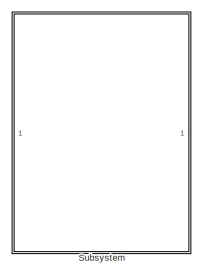
[diagram: root canvas - part 1/3, top left region]
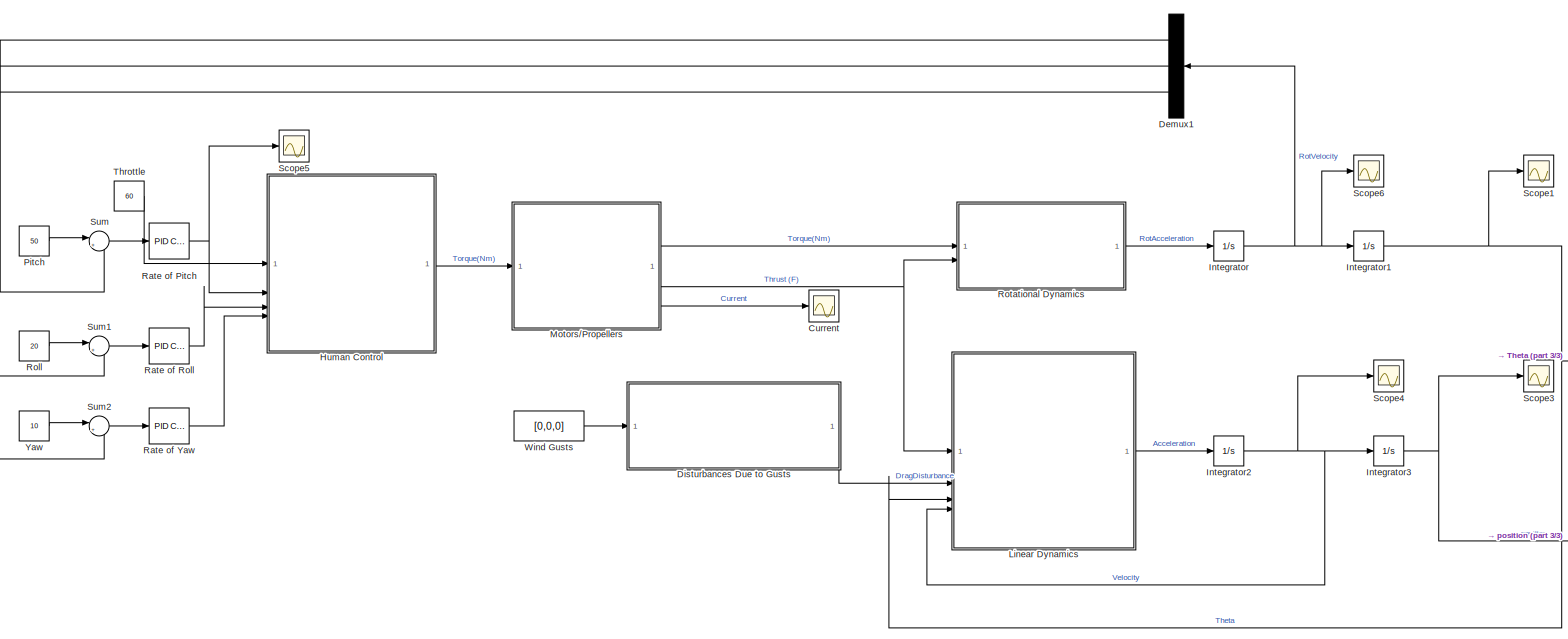
[diagram: root canvas - part 2/3, full width, bottom band]
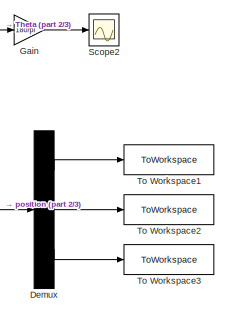
[diagram: root canvas - part 3/3, bottom right region]
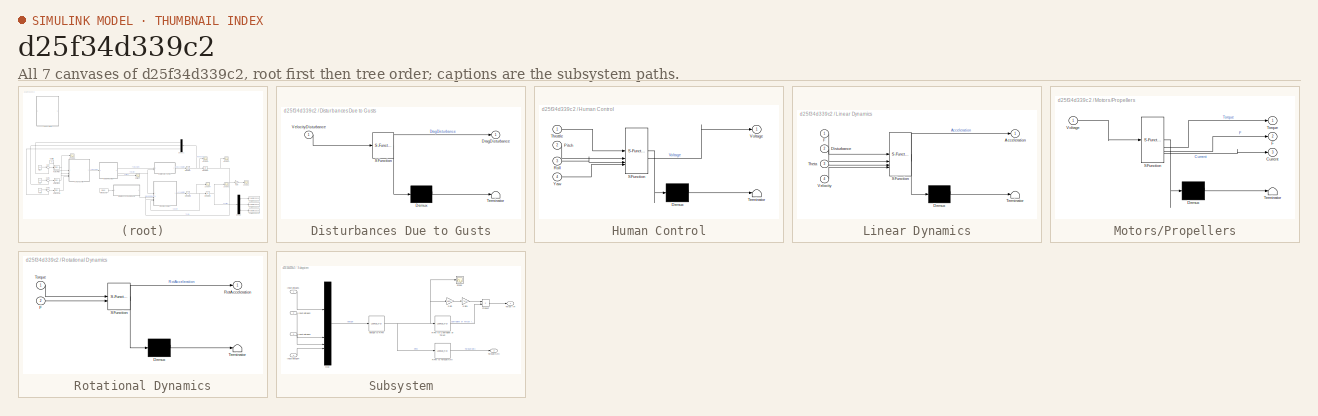
[diagram: thumbnail index - all 7 canvases of the model, root first then tree order]
MODEL slx_d25f34d339c2
KIND model
CONFIG AbsTol = auto
CONFIG EnableMultiTasking = off
CONFIG FixedStep = auto
CONFIG MaxStep = auto
CONFIG MinStep = auto
CONFIG RelTol = 1e-3
CONFIG SampleTimeConstraint = Unconstrained
CONFIG SolverName = VariableStepAuto
CONFIG StartTime = 0.0
CONFIG StopTime = 100
BLOCK [Scope] Current
  Floating = off
  NumInputPorts = 1
  ScopeSpecificationString = Simulink.scopes.TimeScopeBlockCfg('CurrentConfiguration', extmgr.ConfigurationSet(extmgr.Configuration('Core','General UI',true),extmgr.Configuration('Core','Source UI',true),extmgr.Configuration('Sources','WiredSimulink',true),extmgr.Configuration('Visuals','Time Domain',true,'SerializedDisplays',{struct('MinYLimReal','-33.19624','MaxYLimReal','178.28176','YLabelReal','','MinYLimMag','0.00000','M...<+1468ch>
BLOCK [Demux] Demux
  Outputs = 3
BLOCK [Demux] Demux1
  Outputs = 3
BLOCK [SubSystem] Disturbances Due to Gusts
  ErrorFcn = Stateflow.Translate.translate
  LibrarySourceBlock = simulink/User-Defined\nFunctions/MATLAB Function
  PermitHierarchicalResolution = ExplicitOnly
  SFBlockType = MATLAB Function
  TreatAsAtomicUnit = on
BLOCK [Demux] Disturbances Due to Gusts/ Demux 
  Outputs = 1
BLOCK [S-Function] Disturbances Due to Gusts/ SFunction 
  EnableBusSupport = on
  FunctionName = sf_sfun
  PortCounts = [1 2]
  SFcnIsStateOwnerBlock = off
  SFunctionDeploymentMode = off
  Tag = Stateflow S-Function 5
BLOCK [Terminator] Disturbances Due to Gusts/ Terminator 
BLOCK [Outport] Disturbances Due to Gusts/DragDisturbance
BLOCK [Inport] Disturbances Due to Gusts/VelocityDisturbance
BLOCK [Gain] Gain
  Gain = 180/pi
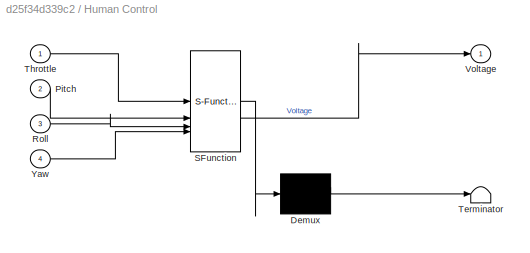
BLOCK [SubSystem] Human Control
  ErrorFcn = Stateflow.Translate.translate
  LibrarySourceBlock = simulink/User-Defined\nFunctions/MATLAB Function
  PermitHierarchicalResolution = ExplicitOnly
  SFBlockType = MATLAB Function
  TreatAsAtomicUnit = on
BLOCK [Demux] Human Control/ Demux 
  Outputs = 1
BLOCK [S-Function] Human Control/ SFunction 
  EnableBusSupport = on
  FunctionName = sf_sfun
  PortCounts = [4 2]
  SFcnIsStateOwnerBlock = off
  SFunctionDeploymentMode = off
  Tag = Stateflow S-Function 4
BLOCK [Terminator] Human Control/ Terminator 
BLOCK [Inport] Human Control/Pitch
  Port = 2
BLOCK [Inport] Human Control/Roll
  Port = 3
BLOCK [Inport] Human Control/Throttle
BLOCK [Outport] Human Control/Voltage
BLOCK [Inport] Human Control/Yaw
  Port = 4
BLOCK [Integrator] Integrator
BLOCK [Integrator] Integrator1
BLOCK [Integrator] Integrator2
BLOCK [Integrator] Integrator3
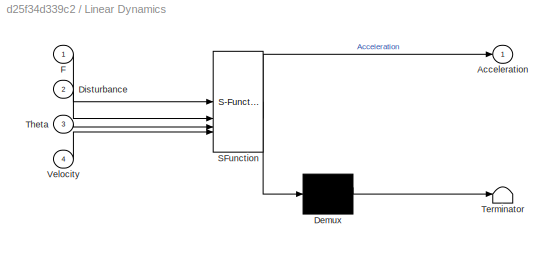
BLOCK [SubSystem] Linear Dynamics
  ErrorFcn = Stateflow.Translate.translate
  LibrarySourceBlock = simulink/User-Defined\nFunctions/MATLAB Function
  PermitHierarchicalResolution = ExplicitOnly
  SFBlockType = MATLAB Function
  TreatAsAtomicUnit = on
BLOCK [Demux] Linear Dynamics/ Demux 
  Outputs = 1
BLOCK [S-Function] Linear Dynamics/ SFunction 
  EnableBusSupport = on
  FunctionName = sf_sfun
  PortCounts = [4 2]
  SFcnIsStateOwnerBlock = off
  SFunctionDeploymentMode = off
  Tag = Stateflow S-Function 3
BLOCK [Terminator] Linear Dynamics/ Terminator 
BLOCK [Outport] Linear Dynamics/Acceleration
BLOCK [Inport] Linear Dynamics/Disturbance
  Port = 2
BLOCK [Inport] Linear Dynamics/F
BLOCK [Inport] Linear Dynamics/Theta
  Port = 3
BLOCK [Inport] Linear Dynamics/Velocity
  Port = 4
BLOCK [SubSystem] Motors//Propellers
  ErrorFcn = Stateflow.Translate.translate
  LibrarySourceBlock = simulink/User-Defined\nFunctions/MATLAB Function
  PermitHierarchicalResolution = ExplicitOnly
  SFBlockType = MATLAB Function
  TreatAsAtomicUnit = on
BLOCK [Demux] Motors//Propellers/ Demux 
  Outputs = 1
BLOCK [S-Function] Motors//Propellers/ SFunction 
  EnableBusSupport = on
  FunctionName = sf_sfun
  PortCounts = [1 4]
  SFcnIsStateOwnerBlock = off
  SFunctionDeploymentMode = off
  Tag = Stateflow S-Function 2
BLOCK [Terminator] Motors//Propellers/ Terminator 
BLOCK [Outport] Motors//Propellers/Current
  Port = 3
BLOCK [Outport] Motors//Propellers/F
  Port = 2
BLOCK [Outport] Motors//Propellers/Torque
BLOCK [Inport] Motors//Propellers/Voltage
BLOCK [Constant] Pitch
  Value = 50
BLOCK [Reference] Rate of Pitch  REF=slpidlib/PID Controller
  LibrarySourceBlock = simulink/Continuous/PID Controller
  SourceBlock = slpidlib/PID Controller
  SourceType = PID 1dof
BLOCK [Reference] Rate of Roll  REF=slpidlib/PID Controller
  LibrarySourceBlock = simulink/Continuous/PID Controller
  SourceBlock = slpidlib/PID Controller
  SourceType = PID 1dof
BLOCK [Reference] Rate of Yaw  REF=slpidlib/PID Controller
  LibrarySourceBlock = simulink/Continuous/PID Controller
  SourceBlock = slpidlib/PID Controller
  SourceType = PID 1dof
BLOCK [Constant] Roll
  Value = 20
BLOCK [SubSystem] Rotational Dynamics
  ErrorFcn = Stateflow.Translate.translate
  LibrarySourceBlock = simulink/User-Defined\nFunctions/MATLAB Function
  PermitHierarchicalResolution = ExplicitOnly
  SFBlockType = MATLAB Function
  TreatAsAtomicUnit = on
BLOCK [Demux] Rotational Dynamics/ Demux 
  Outputs = 1
BLOCK [S-Function] Rotational Dynamics/ SFunction 
  EnableBusSupport = on
  FunctionName = sf_sfun
  PortCounts = [2 2]
  SFcnIsStateOwnerBlock = off
  SFunctionDeploymentMode = off
  Tag = Stateflow S-Function 1
BLOCK [Terminator] Rotational Dynamics/ Terminator 
BLOCK [Inport] Rotational Dynamics/F
  Port = 2
BLOCK [Outport] Rotational Dynamics/RotAcceleration
BLOCK [Inport] Rotational Dynamics/Torque
BLOCK [Scope] Scope1
  Floating = off
  NumInputPorts = 1
  ScopeSpecificationString = Simulink.scopes.TimeScopeBlockCfg('CurrentConfiguration', extmgr.ConfigurationSet(extmgr.Configuration('Core','General UI',true),extmgr.Configuration('Core','Source UI',true),extmgr.Configuration('Sources','WiredSimulink',true,'DataLoggingVariableName','ScopeData2'),extmgr.Configuration('Visuals','Time Domain',true,'SerializedDisplays',{struct('MinYLimReal','-624.52833','MaxYLimReal','5620.75499',...<+1429ch>
BLOCK [Scope] Scope2
  Floating = off
  NumInputPorts = 1
  ScopeSpecificationString = Simulink.scopes.TimeScopeBlockCfg('CurrentConfiguration', extmgr.ConfigurationSet(extmgr.Configuration('Core','General UI',true),extmgr.Configuration('Core','Source UI',true),extmgr.Configuration('Sources','WiredSimulink',true,'DataLoggingVariableName','ScopeData3'),extmgr.Configuration('Visuals','Time Domain',true,'SerializedDisplays',{struct('MinYLimReal','-35757.85621','MaxYLimReal','321820.705...<+1563ch>
BLOCK [Scope] Scope3
  Floating = off
  NumInputPorts = 1
  ScopeSpecificationString = Simulink.scopes.TimeScopeBlockCfg('CurrentConfiguration', extmgr.ConfigurationSet(extmgr.Configuration('Core','General UI',true),extmgr.Configuration('Core','Source UI',true),extmgr.Configuration('Sources','WiredSimulink',true,'DataLoggingVariableName','ScopeData4'),extmgr.Configuration('Visuals','Time Domain',true,'SerializedDisplays',{struct('MinYLimReal','-6.25009','MaxYLimReal','56.25083','YLa...<+1564ch>
BLOCK [Scope] Scope4
  Floating = off
  NumInputPorts = 1
  ScopeSpecificationString = Simulink.scopes.TimeScopeBlockCfg('CurrentConfiguration', extmgr.ConfigurationSet(extmgr.Configuration('Core','General UI',true),extmgr.Configuration('Core','Source UI',true),extmgr.Configuration('Sources','WiredSimulink',true,'DataLoggingVariableName','ScopeData1'),extmgr.Configuration('Visuals','Time Domain',true,'SerializedDisplays',{struct('MinYLimReal','-18.0523','MaxYLimReal','4.59999','YLab...<+1541ch>
BLOCK [Scope] Scope5
  Floating = off
  NumInputPorts = 1
  ScopeSpecificationString = Simulink.scopes.TimeScopeBlockCfg('CurrentConfiguration', extmgr.ConfigurationSet(extmgr.Configuration('Core','General UI',true),extmgr.Configuration('Core','Source UI',true),extmgr.Configuration('Sources','WiredSimulink',true,'DataLoggingVariableName','ScopeData2'),extmgr.Configuration('Visuals','Time Domain',true,'SerializedDisplays',{struct('MinYLimReal','20.51602','MaxYLimReal','108.83155','YL...<+1483ch>
BLOCK [Scope] Scope6
  Floating = off
  NumInputPorts = 1
  ScopeSpecificationString = Simulink.scopes.TimeScopeBlockCfg('CurrentConfiguration', extmgr.ConfigurationSet(extmgr.Configuration('Core','General UI',true),extmgr.Configuration('Core','Source UI',true),extmgr.Configuration('Sources','WiredSimulink',true,'DataLoggingVariableName','ScopeData3'),extmgr.Configuration('Visuals','Time Domain',true,'SerializedDisplays',{struct('MinYLimReal','-6.31451','MaxYLimReal','56.28878','YLa...<+1507ch>
BLOCK [SubSystem] Subsystem
  Commented = on
BLOCK [Lookup_n-D] Subsystem/ RPM to Torque(Nm)
  BreakpointsForDimension1 = [1000\n2000\n3000\n4000\n5000\n6000\n7000\n8000\n9000\n10000\n11000\n12000\n13000\n13999\n15000\n16000\n17000\n18000\n19000\n20000\n21000\n22000\n23000\n24000\n25000\n26000\n26999\n29000\n30000]
  InputPortMap = u0
  InternalRulePriority = Speed
  NumberOfTableDimensions = 1
  RndMeth = Simplest
  Table = [0.000790893803\n0.003050590383\n0.00677908974\n0.01220236153\n0.0190944361\n0.02745531345\n0.03751096323\n0.04926138544\n0.06157673181\n0.07524789611\n0.09027487837\n0.1067706634\n0.1246222664\n0.1485750501\n0.1842782561\n0.2258566732\n0.2743271648\n0.3309325641\n0.3974806284\n0.4765700087\n0.5719292044\n0.6912411838\n0.868853335\n1.456374446\n1.887185599\n1.880745464\n2.452787653\n2.724629151\n2.137108041]
BLOCK [Gain] Subsystem/Gain
  Gain = (1/60)^2
BLOCK [Gain] Subsystem/Gain1
  Gain = 0.2^4*1.225
BLOCK [Inport] Subsystem/InputVoltage1
BLOCK [Inport] Subsystem/InputVoltage2
  Port = 2
BLOCK [Inport] Subsystem/InputVoltage3
  Port = 3
BLOCK [Inport] Subsystem/InputVoltage4
  Port = 4
BLOCK [Mux] Subsystem/Mux
  DisplayOption = bar
BLOCK [Product] Subsystem/Product
BLOCK [Lookup_n-D] Subsystem/RPM to Coefficient of Thrust
  BreakpointsForDimension1 = [1000\n2000\n3000\n4000\n5000\n6000\n7000\n8000\n9000\n10000\n11000\n12000\n13000\n13999\n15000\n16000\n17000\n18000\n19000\n20000\n21000\n22000\n23000\n24000\n25000\n26000\n26999\n29000\n30000]
  InputPortMap = u0
  InternalRulePriority = Speed
  NumberOfTableDimensions = 1
  RndMeth = Simplest
  Table = [0.1017\n0.1018\n0.1018\n0.102\n0.1021\n0.1023\n0.1025\n0.1027\n0.1028\n0.103\n0.1033\n0.1037\n0.1041\n0.1047\n0.1056\n0.1065\n0.1074\n0.1084\n0.1094\n0.1104\n0.1115\n0.1128\n0.1147\n0.1177\n0.1194\n0.1188\n0.12\n0.1167\n0.1113]
BLOCK [Scope] Subsystem/Scope
  Floating = off
  NumInputPorts = 1
  ScopeSpecificationString = Simulink.scopes.TimeScopeBlockCfg('CurrentConfiguration', extmgr.ConfigurationSet(extmgr.Configuration('Core','General UI',true),extmgr.Configuration('Core','Source UI',true),extmgr.Configuration('Sources','WiredSimulink',true,'DataLoggingVariableName','ScopeData1'),extmgr.Configuration('Visuals','Time Domain',true,'SerializedDisplays',{struct('MinYLimReal','6081.18656','MaxYLimReal','11880.27094'...<+1557ch>
BLOCK [Outport] Subsystem/Thrust (F)
BLOCK [Outport] Subsystem/Torque(Nm)
  Port = 2
BLOCK [Lookup_n-D] Subsystem/Voltage to RPM
  BreakpointsForDimension1 = [0	0.570000000000000	1.14000000000000	1.71000000000000	2.28000000000000	2.85000000000000	3.42000000000000	3.99000000000000	4.56000000000000	5.13000000000000	5.70000000000000	6.27000000000000	6.84000000000000	7.41000000000000	7.98000000000000	8.55000000000000	9.12000000000000	9.69000000000000	10.2600000000000	10.8300000000000	11.4000000000000]
  InputPortMap = u0
  InternalRulePriority = Speed
  NumberOfTableDimensions = 1
  RndMeth = Simplest
  Table = [0	797.501250000000	1592.01000000000	2380.53375000000	3160.08000000000	3927.65625000000	4680.27000000000	5414.92875000000	6128.64000000000	6818.41125000000	7481.25000000000	8114.16375000000	8714.16000000000	9278.24625000000	9803.43000000000	10286.7187500000	10725.1200000000	11115.6412500000	11455.2900000000	11741.0737500000	11970]
BLOCK [Sum] Sum
  Inputs = |+-
BLOCK [Sum] Sum1
  Inputs = |+-
BLOCK [Sum] Sum2
  Inputs = |+-
BLOCK [Constant] Throttle
  Value = 60
BLOCK [ToWorkspace] To Workspace1
  FixptAsFi = on
  MaxDataPoints = inf
  SampleTime = -1
  Save2DSignal = 2-D array (concatenate along first dimension)
  VariableName = X
BLOCK [ToWorkspace] To Workspace2
  FixptAsFi = on
  MaxDataPoints = inf
  SampleTime = -1
  Save2DSignal = 2-D array (concatenate along first dimension)
  VariableName = Y
BLOCK [ToWorkspace] To Workspace3
  FixptAsFi = on
  MaxDataPoints = inf
  SampleTime = -1
  Save2DSignal = 2-D array (concatenate along first dimension)
  VariableName = Z
BLOCK [Constant] Wind Gusts
  Value = [0,0,0]
BLOCK [Constant] Yaw
  Value = 10
LINE Demux1:1 -> Sum:2
LINE Demux1:2 -> Sum1:2
LINE Demux1:3 -> Sum2:2
LINE Demux:1 -> To Workspace1:1
LINE Demux:2 -> To Workspace2:1
LINE Demux:3 -> To Workspace3:1
LINE Disturbances Due to Gusts:1 -> Linear Dynamics:2
LINE Gain:1 -> Scope2:1
LINE Human Control:1 -> Motors//Propellers:1
NET Integrator1:1 -> Gain:1, Linear Dynamics:3, Scope1:1
NET Integrator2:1 -> Integrator3:1, Linear Dynamics:4, Scope4:1
NET Integrator3:1 -> Demux:1, Scope3:1
NET Integrator:1 -> Demux1:1, Integrator1:1, Scope6:1
LINE Linear Dynamics:1 -> Integrator2:1
LINE Motors//Propellers:1 -> Rotational Dynamics:1
NET Motors//Propellers:2 -> Linear Dynamics:1, Rotational Dynamics:2
LINE Motors//Propellers:3 -> Current:1
LINE Pitch:1 -> Sum:1
NET Rate of Pitch:1 -> Human Control:2, Scope5:1
LINE Rate of Roll:1 -> Human Control:3
LINE Rate of Yaw:1 -> Human Control:4
LINE Roll:1 -> Sum1:1
LINE Rotational Dynamics:1 -> Integrator:1
LINE Subsystem/ RPM to Torque(Nm):1 -> Subsystem/Torque(Nm):1
LINE Subsystem/Gain1:1 -> Subsystem/Product:1
LINE Subsystem/Gain:1 -> Subsystem/Gain1:1
LINE Subsystem/InputVoltage1:1 -> Subsystem/Mux:1
LINE Subsystem/InputVoltage2:1 -> Subsystem/Mux:2
LINE Subsystem/InputVoltage3:1 -> Subsystem/Mux:3
LINE Subsystem/InputVoltage4:1 -> Subsystem/Mux:4
LINE Subsystem/Mux:1 -> Subsystem/Voltage to RPM:1
LINE Subsystem/Product:1 -> Subsystem/Thrust (F):1
LINE Subsystem/RPM to Coefficient of Thrust:1 -> Subsystem/Product:2
NET Subsystem/Voltage to RPM:1 -> Subsystem/ RPM to Torque(Nm):1, Subsystem/Gain:1, Subsystem/RPM to Coefficient of Thrust:1, Subsystem/Scope:1
LINE Sum1:1 -> Rate of Roll:1
LINE Sum2:1 -> Rate of Yaw:1
LINE Sum:1 -> Rate of Pitch:1
LINE Throttle:1 -> Human Control:1
LINE Wind Gusts:1 -> Disturbances Due to Gusts:1
LINE Yaw:1 -> Sum2:1
note: NET lines group one-source signal fan-out (src -> all destinations, sorted); 1:1 wires keep LINE
CHART Rotational Dynamics states=1 transitions=1
  STATE_LABEL 'eML_blk_kernel()'
  STATE_LABEL 'SCRIPT:\nfunction RotAcceleration = fcn(Torque,F)\nMoment=[0 0 0];\nRotAcceleration=[0 0 0];\nI=[0.003,0.003,0.007];\nMoment(1)=(F(3)+F(4))*0.237/2-(F(1)+F(2))*0.237/2;\nMoment(2)=(F(3)+F(2))*0.237/2-(F(1)+F(4))*0.237/2;\nMoment(3)=Torque(4)-Torque(1)+Torque(2)-Torque(3);\n\nfor i=1:3\n    RotAcceleration(i)=Moment(i)/I(i);\nend'
CHART Motors//Propellers states=1 transitions=1
  STATE_LABEL 'eML_blk_kernel()'
  STATE_LABEL 'SCRIPT:\nfunction [Torque, F, Current] = fcn(Voltage)\n\nRPM = [0 0 0 0];\nTorque = [0 0 0 0];\nCurrent = [0 0 0 0];\nF = [0 0 0 0];\n\nfor i=1:4\n    RPM(i)=-2.6931*Voltage(i)^3+1400*Voltage(i);\n    Ct= 2*10^-15*RPM(i)^3-4*10^-11*RPM(i)^2+3*10^-7*RPM(i)+0.1013;\n    F(i)= Ct*1.225*(RPM(i)/60)^2*0.2^4;\n    Torque(i)= 4*10^-14*RPM(i)^3+8*10^-12*RPM(i)^2+3*10^-6*RPM(i);\n    Current(i)= 1400*Torque(i);\nend\n\n\n\n...<+3ch>'
CHART Linear Dynamics states=1 transitions=1
  STATE_LABEL 'eML_blk_kernel()'
  STATE_LABEL 'SCRIPT:\nfunction Acceleration = fcn(F,Disturbance,Theta,Velocity)\nm=0.743;\ng=9.81;\nA=[0.0197 0.0197 0.0512];\nrho=1.225;\nCd=1;\n\nAcceleration=[0 0 0];\nForce=[0 0 0];\nFprop=[0 0 0];\n\nFprop(1)=sin(Theta(2))*cos(Theta(1))*(F(1)+F(2)+F(3)+F(4));\nFprop(2)=sin(Theta(1))*cos(Theta(2))*(F(1)+F(2)+F(3)+F(4));\nFprop(3)=cos(Theta(1))*cos(Theta(2))*(F(1)+F(2)+F(3)+F(4));\n\nThetaXY=-atan2(Fprop(1),Fprop(2));\nXY2D...<+734ch>'
CHART Human Control states=1 transitions=1
  STATE_LABEL 'eML_blk_kernel()'
  STATE_LABEL 'SCRIPT:\nfunction Voltage = fcn(Throttle,Pitch,Roll,Yaw)\nCorrect=0;\nif (Pitch/2+Roll/2+Yaw/2)>(100-Throttle)\n\tCorrect=((Pitch/2+Roll/2+Yaw/2)-(100-Throttle));\nend\nif(Pitch/2+Roll/2+Yaw/2)>(Throttle)\n\tif Correct<((Pitch/2+Roll/2+Yaw/2)-(Throttle))\n\t   Correct=((Pitch/2+Roll/2+Yaw/2)-(Throttle));\n\tend\nend\n\nif Correct~=0\nPitch=Pitch-Correct/3*2;\nRoll=Roll-Correct/3*2;\nend\n\nVoltage=[(Throttle-Pitch/2-R...<+149ch>'
CHART Disturbances Due to Gusts states=1 transitions=1
  STATE_LABEL 'eML_blk_kernel()'
  STATE_LABEL 'SCRIPT:\nfunction DragDisturbance = fcn(VelocityDisturbance)\nA=[0.0197 0.0197 0.0197*2*1.3];\nDragDisturbance=[0 0 0];\nrho=1.225;\nCd=1;\n\nfor i=1:3\n\tif VelocityDisturbance(i)<0\n\t\tDragDisturbance(i)=0.5*rho*VelocityDisturbance(i)^2*A(i)*Cd;\n\telse\n\t\tDragDisturbance(i)=-0.5*rho*VelocityDisturbance(i)^2*A(i)*Cd;\n\tend\nend'
CHART  states=0 transitions=0
CHART  states=0 transitions=0
CHART  states=0 transitions=0
CHART  states=0 transitions=0
CHART  states=0 transitions=0
